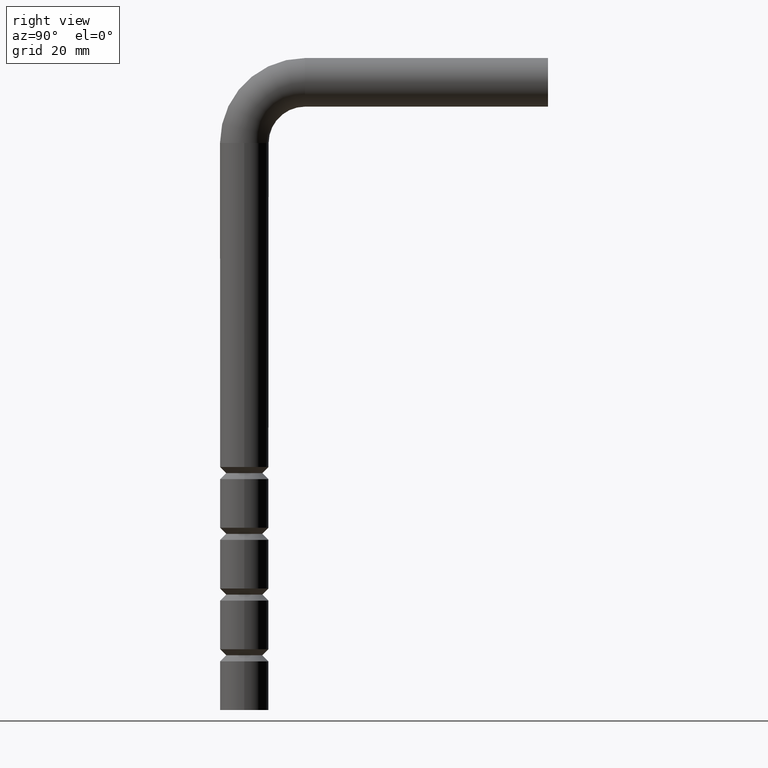
[diagram: clean part render]
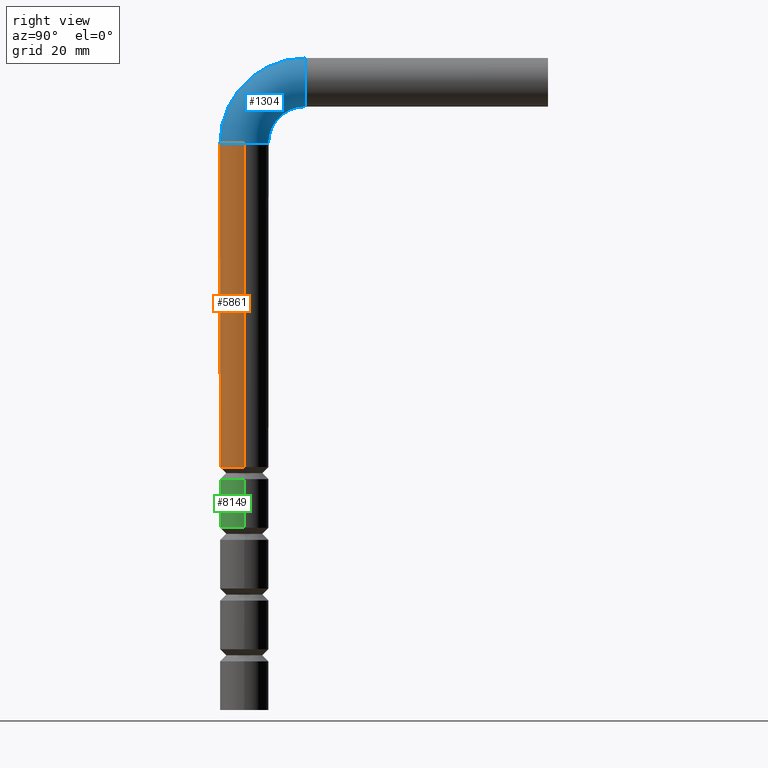
[diagram: same view with three faces highlighted in distinct colors, each labeled with its STEP entity id]
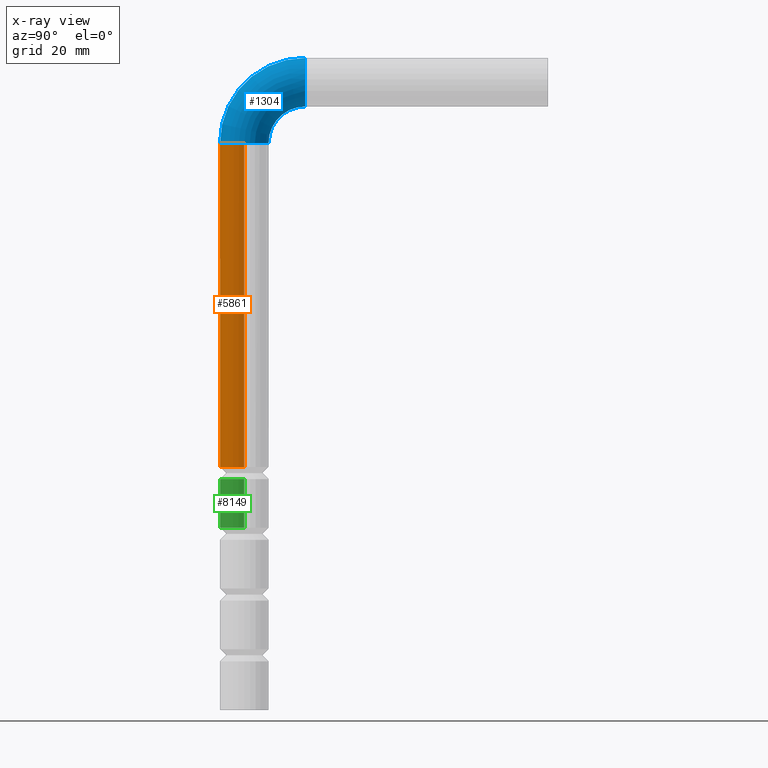
[diagram: x-ray of the same camera — body ghosted, the three highlighted faces saturated]
A machine part, right view with three faces highlighted in distinct colors.
The next image is the same camera in x-ray (body ghosted, the three faces saturated) — at least one of them is partly hidden behind the body in this view.
Their STEP definitions:

[orange] entity #5861 — the highlighted cylindrical surface (edge-blend (fillet) strip) has radius 6 mm, axis along (0, 0, -1).
#95 = DIRECTION ( 'NONE',  ( -1.000000000000000000, 0.000000000000000000, 0.000000000000000000 ) ) ;
#230 = ORIENTED_EDGE ( 'NONE', *, *, #8401, .T. ) ;
#674 = DIRECTION ( 'NONE',  ( 0.000000000000000000, 0.000000000000000000, -1.000000000000000000 ) ) ;
#891 = EDGE_CURVE ( 'NONE', #2910, #5016, #1667, .T. ) ;
#1021 = CARTESIAN_POINT ( 'NONE',  ( 6.000000000000000888, 7.347880794884120722E-16, 140.0000000000000000 ) ) ;
#1198 = DIRECTION ( 'NONE',  ( 0.000000000000000000, 0.000000000000000000, -1.000000000000000000 ) ) ;
#1241 = AXIS2_PLACEMENT_3D ( 'NONE', #12553, #2420, #12416 ) ;
#1523 = FACE_OUTER_BOUND ( 'NONE', #2456, .T. ) ;
#1646 = CARTESIAN_POINT ( 'NONE',  ( 0.000000000000000000, 0.000000000000000000, 60.00000000000000000 ) ) ;
#1667 = CIRCLE ( 'NONE', #5186, 5.999999999999686473 ) ;
#1671 = LINE ( 'NONE', #1021, #5446 ) ;
#1751 = CARTESIAN_POINT ( 'NONE',  ( -6.000000000000000888, 0.000000000000000000, 140.0000000000000000 ) ) ;
#2420 = DIRECTION ( 'NONE',  ( 0.000000000000000000, 0.000000000000000000, 1.000000000000000000 ) ) ;
#2456 = EDGE_LOOP ( 'NONE', ( #5821, #10922, #4955, #230, #3748 ) ) ;
#2565 = AXIS2_PLACEMENT_3D ( 'NONE', #5240, #8124, #12245 ) ;
#2910 = VERTEX_POINT ( 'NONE', #10999 ) ;
#3696 = DIRECTION ( 'NONE',  ( -1.000000000000000000, 0.000000000000000000, 0.000000000000000000 ) ) ;
#3748 = ORIENTED_EDGE ( 'NONE', *, *, #891, .F. ) ;
#3893 = VERTEX_POINT ( 'NONE', #9923 ) ;
#4118 = CARTESIAN_POINT ( 'NONE',  ( -5.999999999999686473, 0.000000000000000000, 60.00000000000000000 ) ) ;
#4188 = CYLINDRICAL_SURFACE ( 'NONE', #6354, 6.000000000000000888 ) ;
#4955 = ORIENTED_EDGE ( 'NONE', *, *, #5041, .F. ) ;
#5016 = VERTEX_POINT ( 'NONE', #4118 ) ;
#5041 = EDGE_CURVE ( 'NONE', #3893, #7503, #11523, .T. ) ;
#5186 = AXIS2_PLACEMENT_3D ( 'NONE', #1646, #9742, #3696 ) ;
#5240 = CARTESIAN_POINT ( 'NONE',  ( 0.000000000000000000, -6.938893903907228378E-15, 140.0000000000000000 ) ) ;
#5446 = VECTOR ( 'NONE', #9176, 1000.000000000000000 ) ;
#5757 = CARTESIAN_POINT ( 'NONE',  ( 6.000000000000000888, 7.347880794884118750E-16, 140.0000000000000000 ) ) ;
#5821 = ORIENTED_EDGE ( 'NONE', *, *, #6320, .F. ) ;
#5861 = ADVANCED_FACE ( 'NONE', ( #1523 ), #4188, .T. ) ;
#6320 = EDGE_CURVE ( 'NONE', #7675, #2910, #1671, .T. ) ;
#6354 = AXIS2_PLACEMENT_3D ( 'NONE', #12100, #1198, #95 ) ;
#7503 = VERTEX_POINT ( 'NONE', #12662 ) ;
#7675 = VERTEX_POINT ( 'NONE', #5757 ) ;
#8124 = DIRECTION ( 'NONE',  ( 0.000000000000000000, 0.000000000000000000, 1.000000000000000000 ) ) ;
#8127 = VECTOR ( 'NONE', #674, 1000.000000000000000 ) ;
#8401 = EDGE_CURVE ( 'NONE', #3893, #5016, #9077, .T. ) ;
#9077 = LINE ( 'NONE', #1751, #8127 ) ;
#9176 = DIRECTION ( 'NONE',  ( 0.000000000000000000, 0.000000000000000000, -1.000000000000000000 ) ) ;
#9593 = CIRCLE ( 'NONE', #1241, 6.000000000000000888 ) ;
#9742 = DIRECTION ( 'NONE',  ( -0.000000000000000000, -0.000000000000000000, -1.000000000000000000 ) ) ;
#9923 = CARTESIAN_POINT ( 'NONE',  ( -6.000000000000000888, 0.000000000000000000, 140.0000000000000000 ) ) ;
#10922 = ORIENTED_EDGE ( 'NONE', *, *, #12901, .F. ) ;
#10999 = CARTESIAN_POINT ( 'NONE',  ( 5.999999999999686473, 7.347880794883926465E-16, 60.00000000000000000 ) ) ;
#11523 = CIRCLE ( 'NONE', #2565, 6.000000000000000888 ) ;
#12100 = CARTESIAN_POINT ( 'NONE',  ( 0.000000000000000000, 0.000000000000000000, 140.0000000000000000 ) ) ;
#12245 = DIRECTION ( 'NONE',  ( 1.000000000000000000, 0.000000000000000000, 0.000000000000000000 ) ) ;
#12416 = DIRECTION ( 'NONE',  ( 1.000000000000000000, 0.000000000000000000, 0.000000000000000000 ) ) ;
#12553 = CARTESIAN_POINT ( 'NONE',  ( 0.000000000000000000, -6.938893903907228378E-15, 140.0000000000000000 ) ) ;
#12662 = CARTESIAN_POINT ( 'NONE',  ( 0.000000000000000000, -6.000000000000012434, 140.0000000000000000 ) ) ;
#12901 = EDGE_CURVE ( 'NONE', #7503, #7675, #9593, .T. ) ;

[blue] entity #1304 — the highlighted toroidal blend (fillet) surface has major radius 15 mm and minor (blend) radius 6 mm.
#87 = CIRCLE ( 'NONE', #512, 9.000000000000007105 ) ;
#158 = DIRECTION ( 'NONE',  ( 0.000000000000000000, 1.000000000000000000, -4.625929269271485914E-16 ) ) ;
#512 = AXIS2_PLACEMENT_3D ( 'NONE', #3041, #932, #9065 ) ;
#932 = DIRECTION ( 'NONE',  ( 1.000000000000000000, 0.000000000000000000, -0.000000000000000000 ) ) ;
#1072 = CARTESIAN_POINT ( 'NONE',  ( 0.000000000000000000, 15.00000000000000000, 140.0000000000000000 ) ) ;
#1241 = AXIS2_PLACEMENT_3D ( 'NONE', #12553, #2420, #12416 ) ;
#1304 = ADVANCED_FACE ( 'NONE', ( #1652 ), #2605, .T. ) ;
#1638 = ORIENTED_EDGE ( 'NONE', *, *, #10095, .T. ) ;
#1652 = FACE_OUTER_BOUND ( 'NONE', #12847, .T. ) ;
#2420 = DIRECTION ( 'NONE',  ( 0.000000000000000000, 0.000000000000000000, 1.000000000000000000 ) ) ;
#2596 = ORIENTED_EDGE ( 'NONE', *, *, #5413, .F. ) ;
#2605 = TOROIDAL_SURFACE ( 'NONE', #2730, 15.00000000000001421, 6.000000000000000888 ) ;
#2730 = AXIS2_PLACEMENT_3D ( 'NONE', #11441, #9460, #3460 ) ;
#2759 = VERTEX_POINT ( 'NONE', #9906 ) ;
#3041 = CARTESIAN_POINT ( 'NONE',  ( -7.347880794884120722E-16, 15.00000000000000000, 140.0000000000000000 ) ) ;
#3460 = DIRECTION ( 'NONE',  ( 0.000000000000000000, 0.000000000000000000, -1.000000000000000000 ) ) ;
#3504 = CARTESIAN_POINT ( 'NONE',  ( 0.000000000000000000, -6.938893903907228378E-15, 140.0000000000000000 ) ) ;
#4349 = DIRECTION ( 'NONE',  ( 1.000000000000000000, 0.000000000000000000, 0.000000000000000000 ) ) ;
#4351 = ORIENTED_EDGE ( 'NONE', *, *, #6548, .F. ) ;
#4593 = AXIS2_PLACEMENT_3D ( 'NONE', #3504, #8437, #4349 ) ;
#5284 = DIRECTION ( 'NONE',  ( 1.000000000000000000, 0.000000000000000000, 0.000000000000000000 ) ) ;
#5413 = EDGE_CURVE ( 'NONE', #7691, #2759, #12330, .T. ) ;
#5757 = CARTESIAN_POINT ( 'NONE',  ( 6.000000000000000888, 7.347880794884118750E-16, 140.0000000000000000 ) ) ;
#6548 = EDGE_CURVE ( 'NONE', #2759, #11007, #87, .T. ) ;
#6694 = CIRCLE ( 'NONE', #12813, 21.00000000000001776 ) ;
#7478 = CARTESIAN_POINT ( 'NONE',  ( -7.347880794884123680E-16, 5.999999999999993783, 140.0000000000000000 ) ) ;
#7503 = VERTEX_POINT ( 'NONE', #12662 ) ;
#7675 = VERTEX_POINT ( 'NONE', #5757 ) ;
#7691 = VERTEX_POINT ( 'NONE', #12918 ) ;
#8437 = DIRECTION ( 'NONE',  ( 0.000000000000000000, 0.000000000000000000, 1.000000000000000000 ) ) ;
#9065 = DIRECTION ( 'NONE',  ( 0.000000000000000000, 0.000000000000000000, -1.000000000000000000 ) ) ;
#9460 = DIRECTION ( 'NONE',  ( 1.000000000000000000, 0.000000000000000000, -0.000000000000000000 ) ) ;
#9507 = AXIS2_PLACEMENT_3D ( 'NONE', #12378, #158, #5284 ) ;
#9593 = CIRCLE ( 'NONE', #1241, 6.000000000000000888 ) ;
#9797 = EDGE_CURVE ( 'NONE', #7691, #7503, #6694, .T. ) ;
#9906 = CARTESIAN_POINT ( 'NONE',  ( 0.000000000000000000, 14.99999999999999645, 149.0000000000000284 ) ) ;
#10081 = DIRECTION ( 'NONE',  ( 0.000000000000000000, 0.000000000000000000, -1.000000000000000000 ) ) ;
#10095 = EDGE_CURVE ( 'NONE', #7675, #11007, #11849, .T. ) ;
#10126 = DIRECTION ( 'NONE',  ( 1.000000000000000000, 0.000000000000000000, -0.000000000000000000 ) ) ;
#10908 = ORIENTED_EDGE ( 'NONE', *, *, #12901, .T. ) ;
#11007 = VERTEX_POINT ( 'NONE', #7478 ) ;
#11441 = CARTESIAN_POINT ( 'NONE',  ( 0.000000000000000000, 15.00000000000000000, 140.0000000000000000 ) ) ;
#11849 = CIRCLE ( 'NONE', #4593, 6.000000000000000888 ) ;
#12330 = CIRCLE ( 'NONE', #9507, 6.000000000000000888 ) ;
#12378 = CARTESIAN_POINT ( 'NONE',  ( 0.000000000000000000, 15.00000000000000000, 155.0000000000000284 ) ) ;
#12416 = DIRECTION ( 'NONE',  ( 1.000000000000000000, 0.000000000000000000, 0.000000000000000000 ) ) ;
#12553 = CARTESIAN_POINT ( 'NONE',  ( 0.000000000000000000, -6.938893903907228378E-15, 140.0000000000000000 ) ) ;
#12662 = CARTESIAN_POINT ( 'NONE',  ( 0.000000000000000000, -6.000000000000012434, 140.0000000000000000 ) ) ;
#12813 = AXIS2_PLACEMENT_3D ( 'NONE', #1072, #10126, #10081 ) ;
#12847 = EDGE_LOOP ( 'NONE', ( #2596, #12853, #10908, #1638, #4351 ) ) ;
#12853 = ORIENTED_EDGE ( 'NONE', *, *, #9797, .T. ) ;
#12901 = EDGE_CURVE ( 'NONE', #7503, #7675, #9593, .T. ) ;
#12918 = CARTESIAN_POINT ( 'NONE',  ( 7.347880794884114806E-16, 15.00000000000000355, 161.0000000000000284 ) ) ;

[green] entity #8149 — the highlighted cylindrical surface (edge-blend (fillet) strip) has radius 6 mm, axis along (0, 0, -1).
#294 = ORIENTED_EDGE ( 'NONE', *, *, #8286, .F. ) ;
#380 = VERTEX_POINT ( 'NONE', #10470 ) ;
#755 = EDGE_CURVE ( 'NONE', #5281, #10797, #1013, .T. ) ;
#773 = CARTESIAN_POINT ( 'NONE',  ( 5.999999999999686473, 7.347880794883735166E-16, 56.99999999999999289 ) ) ;
#1013 = LINE ( 'NONE', #7946, #9734 ) ;
#1774 = CARTESIAN_POINT ( 'NONE',  ( 0.000000000000000000, 0.000000000000000000, 45.00000000000000000 ) ) ;
#1965 = VECTOR ( 'NONE', #5288, 1000.000000000000000 ) ;
#2071 = EDGE_LOOP ( 'NONE', ( #3405, #6008, #3479, #294 ) ) ;
#2077 = AXIS2_PLACEMENT_3D ( 'NONE', #6431, #7325, #12586 ) ;
#2781 = CARTESIAN_POINT ( 'NONE',  ( 0.000000000000000000, 0.000000000000000000, 140.0000000000000000 ) ) ;
#3405 = ORIENTED_EDGE ( 'NONE', *, *, #755, .F. ) ;
#3479 = ORIENTED_EDGE ( 'NONE', *, *, #8859, .T. ) ;
#4146 = VERTEX_POINT ( 'NONE', #9581 ) ;
#4591 = DIRECTION ( 'NONE',  ( -1.000000000000000000, 0.000000000000000000, 0.000000000000000000 ) ) ;
#4693 = CIRCLE ( 'NONE', #2077, 5.999999999999686473 ) ;
#5281 = VERTEX_POINT ( 'NONE', #773 ) ;
#5288 = DIRECTION ( 'NONE',  ( 0.000000000000000000, 0.000000000000000000, -1.000000000000000000 ) ) ;
#5535 = EDGE_CURVE ( 'NONE', #5281, #380, #4693, .T. ) ;
#6008 = ORIENTED_EDGE ( 'NONE', *, *, #5535, .T. ) ;
#6083 = FACE_OUTER_BOUND ( 'NONE', #2071, .T. ) ;
#6431 = CARTESIAN_POINT ( 'NONE',  ( 0.000000000000000000, 0.000000000000000000, 56.99999999999999289 ) ) ;
#6689 = LINE ( 'NONE', #9454, #1965 ) ;
#6887 = DIRECTION ( 'NONE',  ( 0.000000000000000000, 0.000000000000000000, -1.000000000000000000 ) ) ;
#7067 = CARTESIAN_POINT ( 'NONE',  ( 5.999999999999790390, 7.347880794883990560E-16, 45.00000000000000000 ) ) ;
#7158 = AXIS2_PLACEMENT_3D ( 'NONE', #2781, #6887, #12968 ) ;
#7189 = CYLINDRICAL_SURFACE ( 'NONE', #7158, 6.000000000000000888 ) ;
#7325 = DIRECTION ( 'NONE',  ( -0.000000000000000000, -0.000000000000000000, -1.000000000000000000 ) ) ;
#7946 = CARTESIAN_POINT ( 'NONE',  ( 6.000000000000000888, 7.347880794884120722E-16, 140.0000000000000000 ) ) ;
#8149 = ADVANCED_FACE ( 'NONE', ( #6083 ), #7189, .T. ) ;
#8286 = EDGE_CURVE ( 'NONE', #10797, #4146, #10064, .T. ) ;
#8630 = DIRECTION ( 'NONE',  ( -0.000000000000000000, -0.000000000000000000, -1.000000000000000000 ) ) ;
#8859 = EDGE_CURVE ( 'NONE', #380, #4146, #6689, .T. ) ;
#9454 = CARTESIAN_POINT ( 'NONE',  ( -6.000000000000000888, 0.000000000000000000, 140.0000000000000000 ) ) ;
#9581 = CARTESIAN_POINT ( 'NONE',  ( -5.999999999999790390, 0.000000000000000000, 45.00000000000000000 ) ) ;
#9734 = VECTOR ( 'NONE', #13054, 1000.000000000000000 ) ;
#10064 = CIRCLE ( 'NONE', #12212, 5.999999999999790390 ) ;
#10470 = CARTESIAN_POINT ( 'NONE',  ( -5.999999999999686473, 0.000000000000000000, 56.99999999999999289 ) ) ;
#10797 = VERTEX_POINT ( 'NONE', #7067 ) ;
#12212 = AXIS2_PLACEMENT_3D ( 'NONE', #1774, #8630, #4591 ) ;
#12586 = DIRECTION ( 'NONE',  ( -1.000000000000000000, 0.000000000000000000, 0.000000000000000000 ) ) ;
#12968 = DIRECTION ( 'NONE',  ( -1.000000000000000000, 0.000000000000000000, 0.000000000000000000 ) ) ;
#13054 = DIRECTION ( 'NONE',  ( 0.000000000000000000, 0.000000000000000000, -1.000000000000000000 ) ) ;